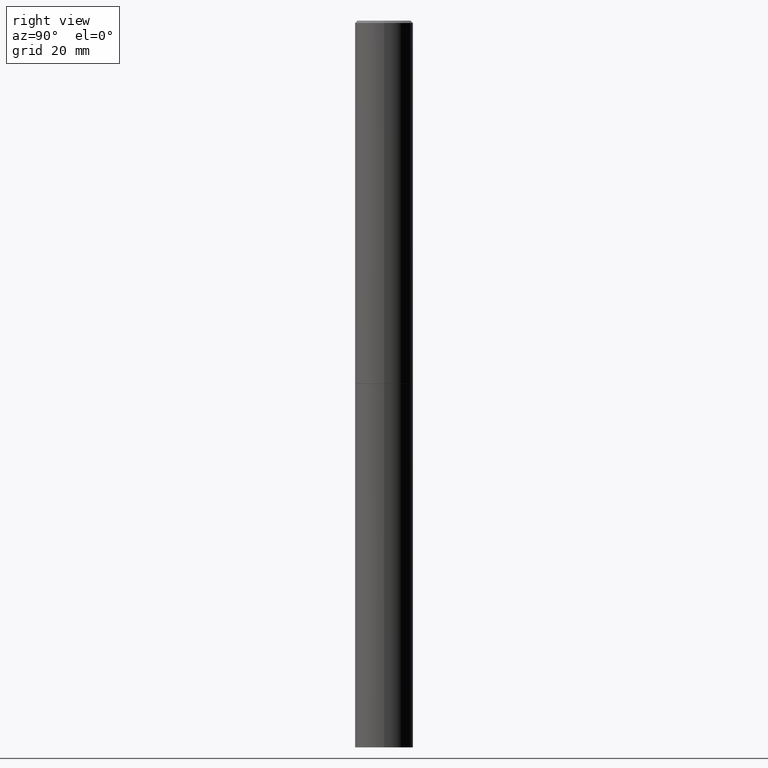
[diagram: clean part render]
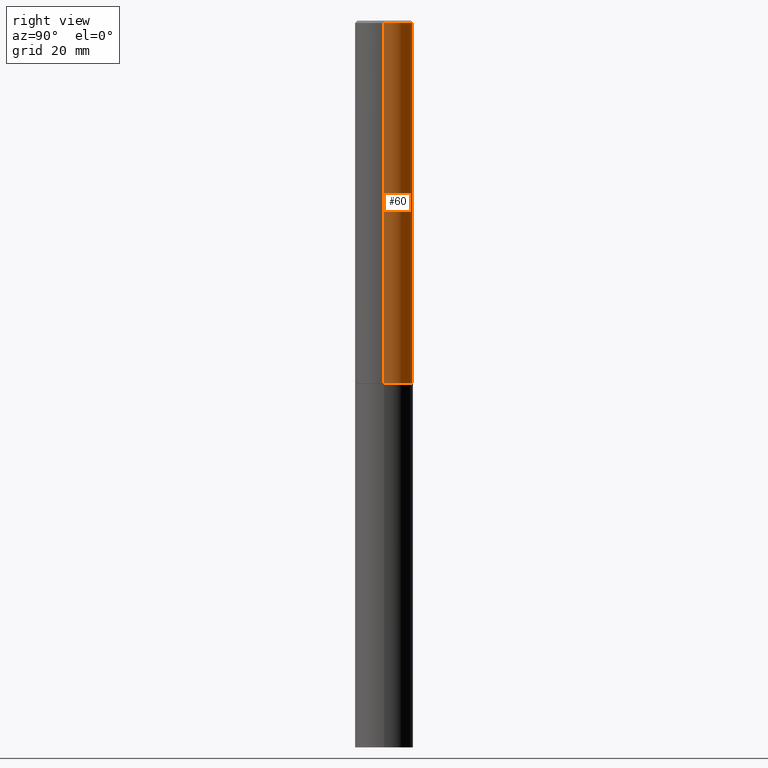
[diagram: same view with one face highlighted and labeled with its STEP entity id]
A machine part, right view. The second image highlights one B-rep face of the part: STEP entity #60.
In plain terms, the highlighted cylindrical surface (edge-blend (fillet) strip) has radius 5.9995 mm, axis along (-0, 0, 1).
Its self-contained STEP definition (entity closure, byte-faithful):
#5 = EDGE_LOOP ( 'NONE', ( #17, #94, #68, #92 ) ) ;
#17 = ORIENTED_EDGE ( 'NONE', *, *, #20, .T. ) ;
#20 = EDGE_CURVE ( 'NONE', #346, #88, #168, .T. ) ;
#22 = CYLINDRICAL_SURFACE ( 'NONE', #30, 0.2361999999999998545 ) ;
#30 = AXIS2_PLACEMENT_3D ( 'NONE', #359, #277, #77 ) ;
#39 = VERTEX_POINT ( 'NONE', #209 ) ;
#52 = DIRECTION ( 'NONE',  ( -2.445468806185136877E-29, 3.491481338843145188E-15, 1.000000000000000000 ) ) ;
#60 = ADVANCED_FACE ( 'NONE', ( #279 ), #22, .T. ) ;
#61 = DIRECTION ( 'NONE',  ( 1.000000000000000000, -6.982962677686266711E-15, 0.000000000000000000 ) ) ;
#68 = ORIENTED_EDGE ( 'NONE', *, *, #315, .F. ) ;
#75 = CARTESIAN_POINT ( 'NONE',  ( 7.218290275216666916E-29, -1.030580546786331359E-14, -2.951700000000000212 ) ) ;
#77 = DIRECTION ( 'NONE',  ( 1.000000000000000000, -6.982962677686266711E-15, 4.876176775795935793E-29 ) ) ;
#82 = CARTESIAN_POINT ( 'NONE',  ( -0.2361999999999998545, 1.678301941865355605E-15, -1.161852468318208056E-29 ) ) ;
#88 = VERTEX_POINT ( 'NONE', #135 ) ;
#92 = ORIENTED_EDGE ( 'NONE', *, *, #107, .F. ) ;
#94 = ORIENTED_EDGE ( 'NONE', *, *, #229, .T. ) ;
#105 = CARTESIAN_POINT ( 'NONE',  ( 0.2361999999999998545, -1.649375784469495145E-15, 1.151752954442999387E-29 ) ) ;
#107 = EDGE_CURVE ( 'NONE', #346, #39, #357, .T. ) ;
#113 = AXIS2_PLACEMENT_3D ( 'NONE', #75, #241, #354 ) ;
#135 = CARTESIAN_POINT ( 'NONE',  ( -0.2362000000000000210, -3.509515605454727710E-15, -2.951700000000000212 ) ) ;
#139 = CARTESIAN_POINT ( 'NONE',  ( 0.2361999999999999933, -1.195518125233281011E-14, -2.951700000000000212 ) ) ;
#144 = VERTEX_POINT ( 'NONE', #192 ) ;
#168 = CIRCLE ( 'NONE', #113, 0.2361999999999999933 ) ;
#177 = CIRCLE ( 'NONE', #199, 0.2361999999999997712 ) ;
#181 = VECTOR ( 'NONE', #52, 39.37007874015748143 ) ;
#191 = DIRECTION ( 'NONE',  ( -2.445468806185136877E-29, 3.491481338843145188E-15, 1.000000000000000000 ) ) ;
#192 = CARTESIAN_POINT ( 'NONE',  ( -0.2361999999999997712, 1.579546157692631452E-15, -0.02000000000000007674 ) ) ;
#198 = CARTESIAN_POINT ( 'NONE',  ( 4.890937612370292426E-31, -6.982962677686317493E-17, -0.02000000000000007674 ) ) ;
#199 = AXIS2_PLACEMENT_3D ( 'NONE', #198, #337, #61 ) ;
#209 = CARTESIAN_POINT ( 'NONE',  ( 0.2361999999999997712, -1.690279253850497193E-15, -0.02000000000000007674 ) ) ;
#229 = EDGE_CURVE ( 'NONE', #88, #144, #333, .T. ) ;
#241 = DIRECTION ( 'NONE',  ( -2.445468806185136597E-29, 3.491481338843145583E-15, 1.000000000000000000 ) ) ;
#277 = DIRECTION ( 'NONE',  ( -2.445468806185136597E-29, 3.491481338843145583E-15, 1.000000000000000000 ) ) ;
#279 = FACE_OUTER_BOUND ( 'NONE', #5, .T. ) ;
#291 = VECTOR ( 'NONE', #191, 39.37007874015748143 ) ;
#315 = EDGE_CURVE ( 'NONE', #39, #144, #177, .T. ) ;
#333 = LINE ( 'NONE', #82, #181 ) ;
#337 = DIRECTION ( 'NONE',  ( -2.445468806185136597E-29, 3.491481338843145583E-15, 1.000000000000000000 ) ) ;
#346 = VERTEX_POINT ( 'NONE', #139 ) ;
#354 = DIRECTION ( 'NONE',  ( 1.000000000000000000, -6.982962677686265133E-15, 0.000000000000000000 ) ) ;
#357 = LINE ( 'NONE', #105, #291 ) ;
#359 = CARTESIAN_POINT ( 'NONE',  ( 0.000000000000000000, 0.000000000000000000, 0.000000000000000000 ) ) ;